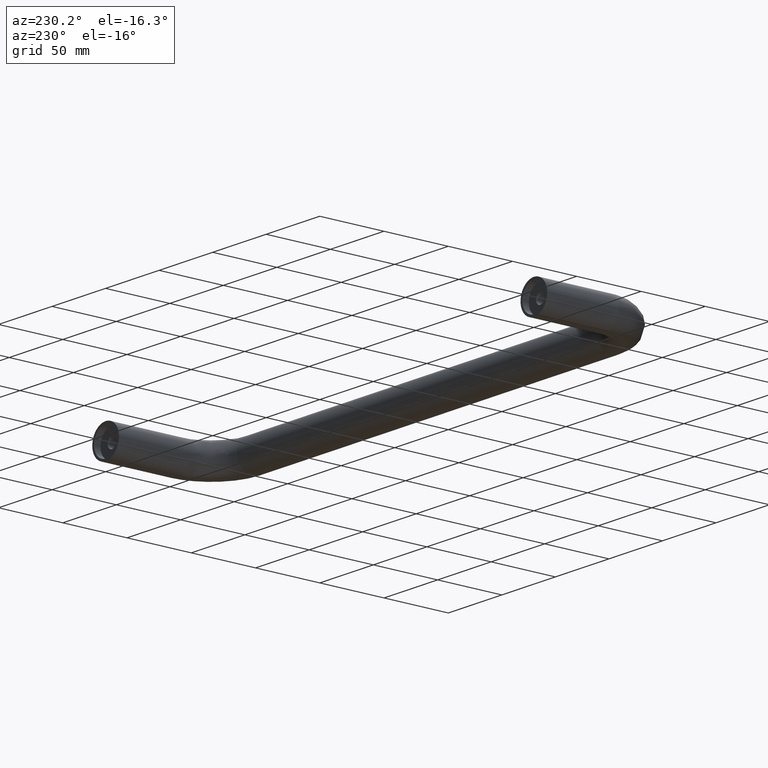
[diagram: clean part render]
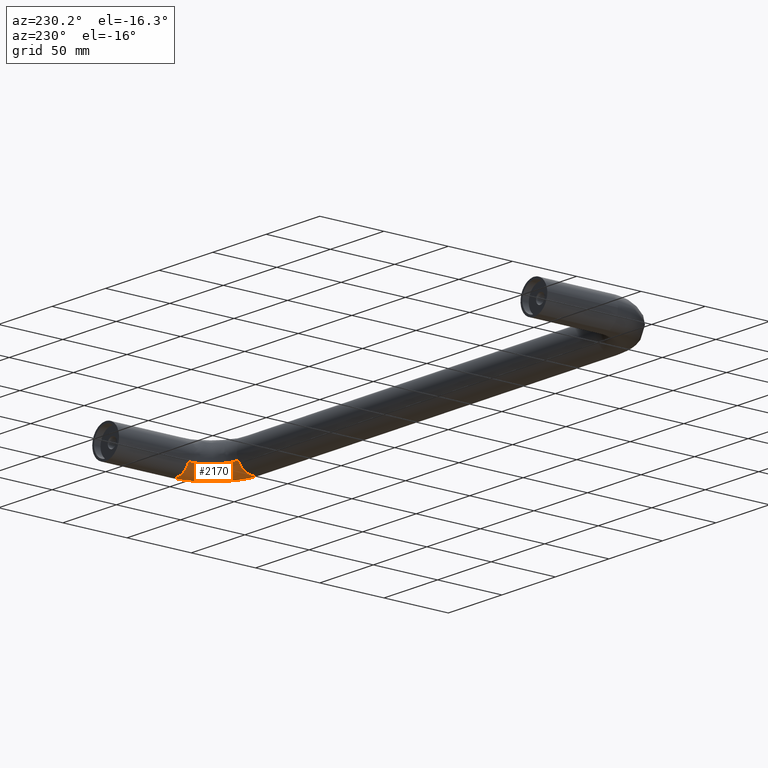
[diagram: same view with one face highlighted and labeled with its STEP entity id]
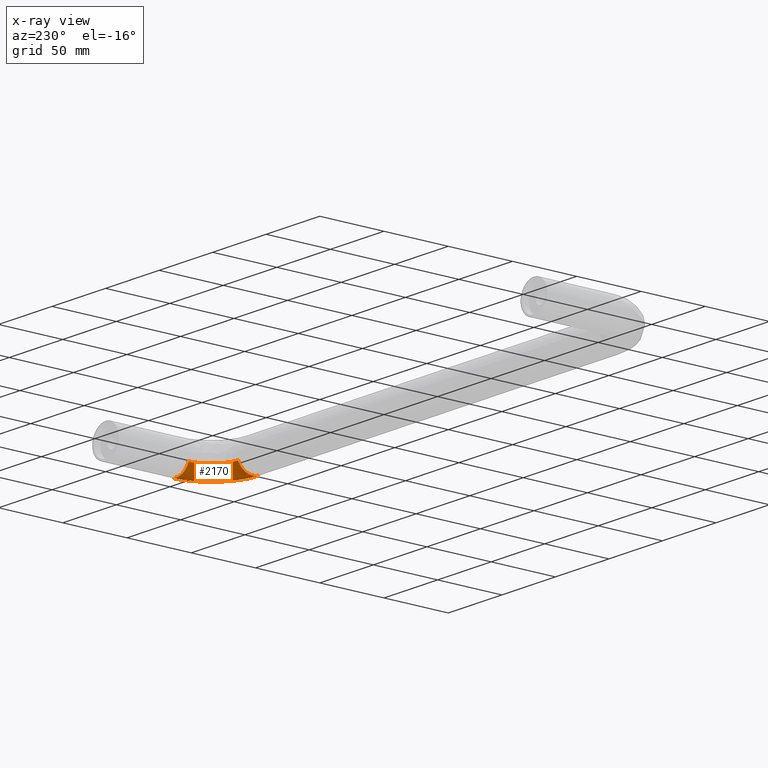
[diagram: x-ray of the same camera — body ghosted, the highlighted face saturated]
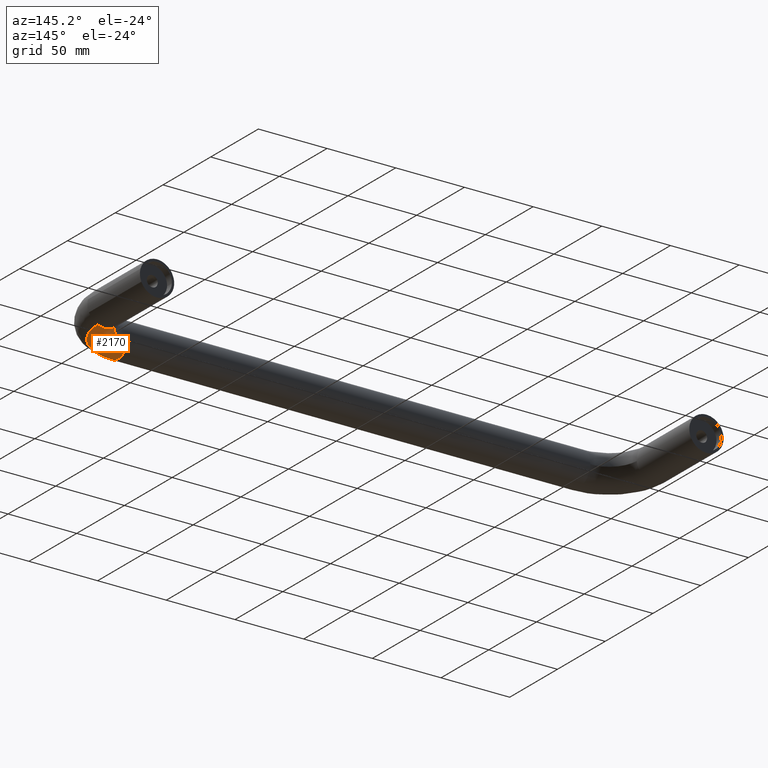
[diagram: same view with one face highlighted and labeled with its STEP entity id]
A machine part, auxiliary view. The second image highlights one B-rep face of the part: STEP entity #2170.
The next image is the same camera in x-ray: the body ghosted, the highlighted face saturated — about 0% of this face is hidden behind the body in this view.
A second angle (auxiliary view) of the same face is appended — the face is thin or edge-on in the first view.
In plain terms, the highlighted face is a freeform B-spline surface patch.
Its self-contained STEP definition (entity closure, byte-faithful):
#1172=CARTESIAN_POINT('',(405.036330454572180,-55.000000002833112,-11.440514654173059));
#1173=VERTEX_POINT('',#1172);
#1187=CARTESIAN_POINT('',(400.0,-55.0,-12.500000000000000));
#1188=VERTEX_POINT('',#1187);
#1189=CARTESIAN_POINT('',(405.036330454572180,-55.000000002833119,-11.440514654173064));
#1190=CARTESIAN_POINT('',(402.629606410007060,-55.0,-12.499999999999995));
#1191=CARTESIAN_POINT('',(400.0,-55.0,-12.500000000000000));
#1199=(BOUNDED_CURVE()B_SPLINE_CURVE(2,(#1189,#1190,#1191),.UNSPECIFIED.,.F.,.U.)B_SPLINE_CURVE_WITH_KNOTS((3,3),(0.431585009638875,0.500000000000000),.UNSPECIFIED.)CURVE()GEOMETRIC_REPRESENTATION_ITEM()RATIONAL_B_SPLINE_CURVE((0.883563120282062,0.919846853032156,1.0))REPRESENTATION_ITEM(''));
#1200=EDGE_CURVE('',#1173,#1188,#1199,.T.);
#1202=CARTESIAN_POINT('',(388.559485342505410,-55.000000000164668,-5.036330447026957));
#1203=VERTEX_POINT('',#1202);
#1204=CARTESIAN_POINT('',(400.0,-55.0,-12.500000000000000));
#1205=CARTESIAN_POINT('',(391.845133527656120,-55.000000000000014,-12.500000000000000));
#1206=CARTESIAN_POINT('',(388.559485342505410,-55.000000000164668,-5.036330447026957));
#1214=(BOUNDED_CURVE()B_SPLINE_CURVE(2,(#1204,#1205,#1206),.UNSPECIFIED.,.F.,.U.)B_SPLINE_CURVE_WITH_KNOTS((3,3),(0.500000000000000,0.681585009844900),.UNSPECIFIED.)CURVE()GEOMETRIC_REPRESENTATION_ITEM()RATIONAL_B_SPLINE_CURVE((1.0,0.787259927913019,0.883563120500592))REPRESENTATION_ITEM(''));
#1215=EDGE_CURVE('',#1188,#1203,#1214,.T.);
#1388=CARTESIAN_POINT('',(367.499999999025990,-92.536330449781843,-11.440514656281859));
#1389=VERTEX_POINT('',#1388);
#1509=CARTESIAN_POINT('',(367.499999998566010,-76.059485343306193,-5.036330448846069));
#1510=VERTEX_POINT('',#1509);
#1526=CARTESIAN_POINT('',(367.500000000000000,-87.500000000000000,-12.500000000000000));
#1527=VERTEX_POINT('',#1526);
#1528=CARTESIAN_POINT('',(367.500000000000000,-87.500000000000000,-12.500000000000000));
#1529=CARTESIAN_POINT('',(367.500000000000110,-79.345133530489619,-12.499999999999998));
#1530=CARTESIAN_POINT('',(367.499999998565900,-76.059485343306193,-5.036330448846069));
#1538=(BOUNDED_CURVE()B_SPLINE_CURVE(2,(#1528,#1529,#1530),.UNSPECIFIED.,.F.,.U.)B_SPLINE_CURVE_WITH_KNOTS((3,3),(0.500000000000000,0.681585009795229),.UNSPECIFIED.)CURVE()GEOMETRIC_REPRESENTATION_ITEM()RATIONAL_B_SPLINE_CURVE((1.0,0.787259927971213,0.883563120447906))REPRESENTATION_ITEM(''));
#1539=EDGE_CURVE('',#1527,#1510,#1538,.T.);
#1541=CARTESIAN_POINT('',(367.499999999026040,-92.536330449781843,-11.440514656281868));
#1542=CARTESIAN_POINT('',(367.499999999999940,-90.129606404541448,-12.500000000000005));
#1543=CARTESIAN_POINT('',(367.500000000000000,-87.500000000000000,-12.500000000000000));
#1551=(BOUNDED_CURVE()B_SPLINE_CURVE(2,(#1541,#1542,#1543),.UNSPECIFIED.,.F.,.U.)B_SPLINE_CURVE_WITH_KNOTS((3,3),(0.431585009769677,0.500000000000000),.UNSPECIFIED.)CURVE()GEOMETRIC_REPRESENTATION_ITEM()RATIONAL_B_SPLINE_CURVE((0.883563120420803,0.919846853185400,1.0))REPRESENTATION_ITEM(''));
#1552=EDGE_CURVE('',#1389,#1527,#1551,.T.);
#2092=CARTESIAN_POINT('',(367.499999998565950,-76.059485343306193,-5.036330448846069));
#2093=CARTESIAN_POINT('',(369.758045111754260,-76.059485342546068,-5.036330446420782));
#2094=CARTESIAN_POINT('',(371.964760623853920,-75.580763723721319,-5.036330446420783));
#2095=CARTESIAN_POINT('',(388.559485341973020,-71.980728541365323,-5.036330446420782));
#2096=CARTESIAN_POINT('',(388.559485342505410,-55.000000000164668,-5.036330447026957));
#2104=(BOUNDED_CURVE()B_SPLINE_CURVE(2,(#2092,#2093,#2094,#2095,#2096),.UNSPECIFIED.,.F.,.U.)B_SPLINE_CURVE_WITH_KNOTS((3,2,3),(-2.295019327156723,-2.0,-0.255468157625406),.UNSPECIFIED.)CURVE()GEOMETRIC_REPRESENTATION_ITEM()RATIONAL_B_SPLINE_CURVE((0.928943411308721,0.958324108992518,1.0,0.753558793511648,0.937042119015438))REPRESENTATION_ITEM(''));
#2105=EDGE_CURVE('',#1510,#1203,#2104,.T.);
#2111=CARTESIAN_POINT('',(367.499999999025990,-92.536330449781843,-11.440514656281859));
#2112=CARTESIAN_POINT('',(371.524729291018050,-92.536330446629634,-11.440514657761467));
#2113=CARTESIAN_POINT('',(375.457968935024890,-91.683059221009273,-11.440514657761470));
#2114=CARTESIAN_POINT('',(405.036330441852040,-85.266372962589031,-11.440514657761465));
#2115=CARTESIAN_POINT('',(405.036330454572120,-55.000000002833119,-11.440514654173059));
#2123=(BOUNDED_CURVE()B_SPLINE_CURVE(2,(#2111,#2112,#2113,#2114,#2115),.UNSPECIFIED.,.F.,.U.)B_SPLINE_CURVE_WITH_KNOTS((3,2,3),(-2.295019327044304,-2.0,-0.255468157807430),.UNSPECIFIED.)CURVE()GEOMETRIC_REPRESENTATION_ITEM()RATIONAL_B_SPLINE_CURVE((0.928943411331112,0.958324109008399,1.0,0.753558793537361,0.937042118977149))REPRESENTATION_ITEM(''));
#2124=EDGE_CURVE('',#1389,#1173,#2123,.T.);
#2129=CARTESIAN_POINT('',(365.878664660566810,-75.960294894988749,-4.953243053172567));
#2130=CARTESIAN_POINT('',(368.948243440749990,-76.197735092200659,-4.953243053172567));
#2131=CARTESIAN_POINT('',(371.957006116445200,-75.545018540895924,-4.953243053172566));
#2132=CARTESIAN_POINT('',(389.831679305926230,-71.667313218975991,-4.953243053172565));
#2133=CARTESIAN_POINT('',(388.464057642251990,-53.428065669270318,-4.953243053172567));
#2134=CARTESIAN_POINT('',(365.877256347762110,-75.978501277698285,-4.994724168759877));
#2135=CARTESIAN_POINT('',(368.949501403697240,-76.216147718530479,-4.994724168759877));
#2136=CARTESIAN_POINT('',(371.960877529490570,-75.562864209203724,-4.994724168759874));
#2137=CARTESIAN_POINT('',(389.851076890837420,-71.681790662386263,-4.994724168759876));
#2138=CARTESIAN_POINT('',(388.482267293332310,-53.426700266819509,-4.994724168759878));
#2139=CARTESIAN_POINT('',(365.487430333944590,-81.018093031867551,-16.476845104182242));
#2140=CARTESIAN_POINT('',(369.297710040006960,-81.312828443345040,-16.476845104182253));
#2141=CARTESIAN_POINT('',(373.032498486412010,-80.502608928764317,-16.476845104182242));
#2142=CARTESIAN_POINT('',(395.220397668561930,-75.689198701411030,-16.476845104182246));
#2143=CARTESIAN_POINT('',(393.522763744223250,-53.048751992192201,-16.476845104182257));
#2144=CARTESIAN_POINT('',(364.601996010635160,-92.464808634327468,-11.422731911888530));
#2145=CARTESIAN_POINT('',(370.088616411909020,-92.889213519621663,-11.422731911888532));
#2146=CARTESIAN_POINT('',(375.466533012594650,-91.722536199020766,-11.422731911888532));
#2147=CARTESIAN_POINT('',(407.416045831956350,-84.791455860987128,-11.422731911888533));
#2148=CARTESIAN_POINT('',(404.971534236560610,-52.190296263408172,-11.422731911888532));
#2149=CARTESIAN_POINT('',(364.598889735926320,-92.504965924642860,-11.405001106144899));
#2150=CARTESIAN_POINT('',(370.091391064297680,-92.929825715508755,-11.405001106144898));
#2151=CARTESIAN_POINT('',(375.475072076069300,-91.761897872041857,-11.405001106144905));
#2152=CARTESIAN_POINT('',(407.458830522420560,-84.823388338037915,-11.405001106144901));
#2153=CARTESIAN_POINT('',(405.011698735826830,-52.187284634822213,-11.405001106144903));
#2161=(BOUNDED_SURFACE()B_SPLINE_SURFACE(2,2,((#2129,#2134,#2139,#2144,#2149),(#2130,#2135,#2140,#2145,#2150),(#2131,#2136,#2141,#2146,#2151),(#2132,#2137,#2142,#2147,#2152),(#2133,#2138,#2143,#2148,#2153)),.UNSPECIFIED.,.F.,.F.,.U.)B_SPLINE_SURFACE_WITH_KNOTS((3,2,3),(3,1,1,3),(0.0,12.099188961577420,68.386201636019010),(0.0,0.106678605111935,20.817356723766700,20.920925670870641),.UNSPECIFIED.)GEOMETRIC_REPRESENTATION_ITEM()RATIONAL_B_SPLINE_SURFACE(((0.912864274518598,0.911491212664311,0.643550716118729,0.911451188211553,0.912784225613081),(0.946780804034289,0.945356727484601,0.667461178459471,0.945315215964628,0.946697780994345),(1.003017326603287,1.001508663301644,0.707106781186548,1.001464686096351,1.002929372192702),(0.741397653692996,0.740282499046726,0.522670241657215,0.740249992532676,0.741332640664896),(0.962834487092709,0.961386263799147,0.678778697960426,0.961344048406872,0.962750056308159)))REPRESENTATION_ITEM('')SURFACE());
#2162=ORIENTED_EDGE('',*,*,#1200,.F.);
#2163=ORIENTED_EDGE('',*,*,#2124,.F.);
#2164=ORIENTED_EDGE('',*,*,#1552,.T.);
#2165=ORIENTED_EDGE('',*,*,#1539,.T.);
#2166=ORIENTED_EDGE('',*,*,#2105,.T.);
#2167=ORIENTED_EDGE('',*,*,#1215,.F.);
#2168=EDGE_LOOP('',(#2162,#2163,#2164,#2165,#2166,#2167));
#2169=FACE_OUTER_BOUND('',#2168,.T.);
#2170=ADVANCED_FACE('',(#2169),#2161,.T.);